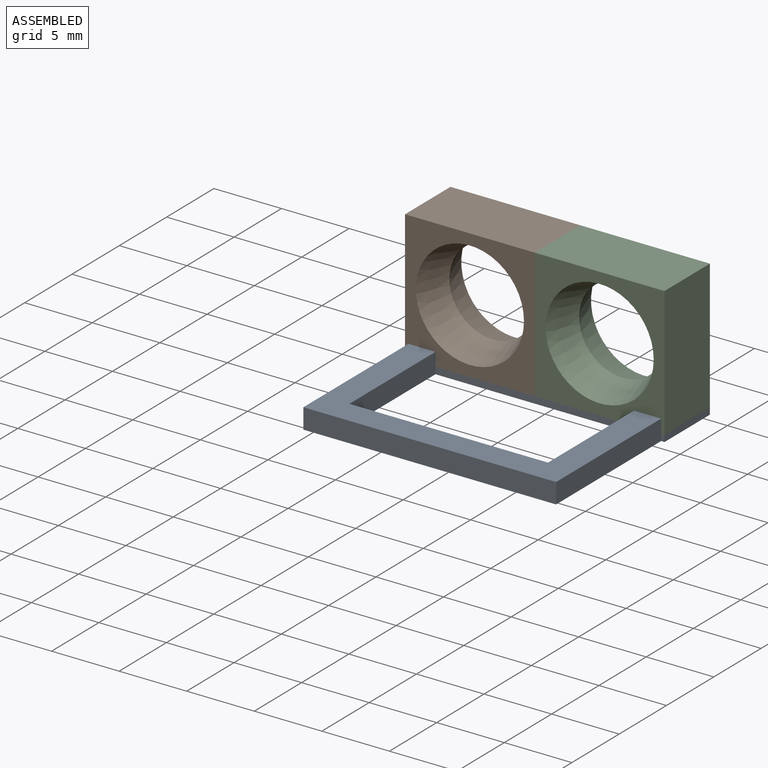
[diagram: assembled view]
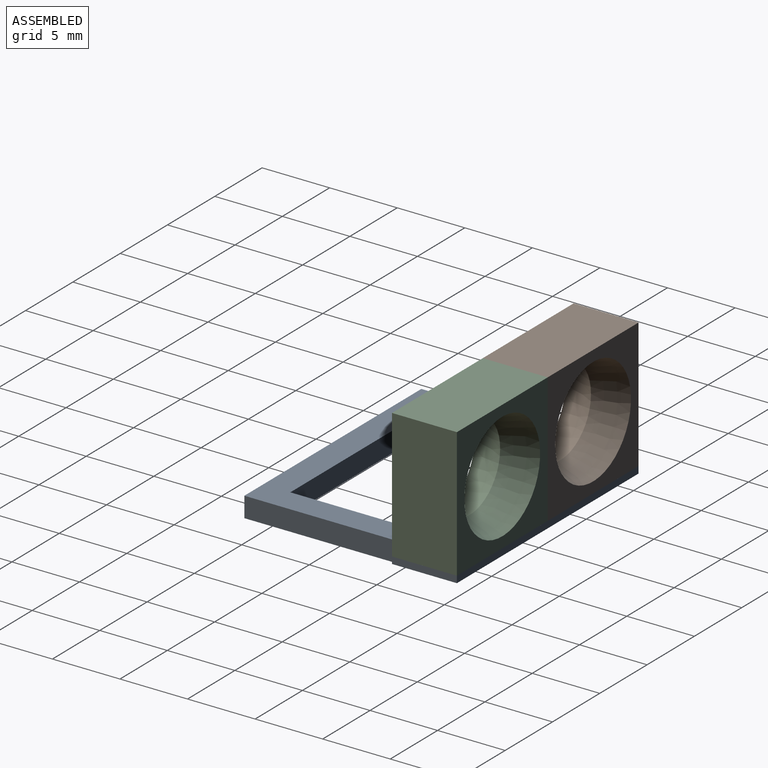
[diagram: assembled view, second angle]
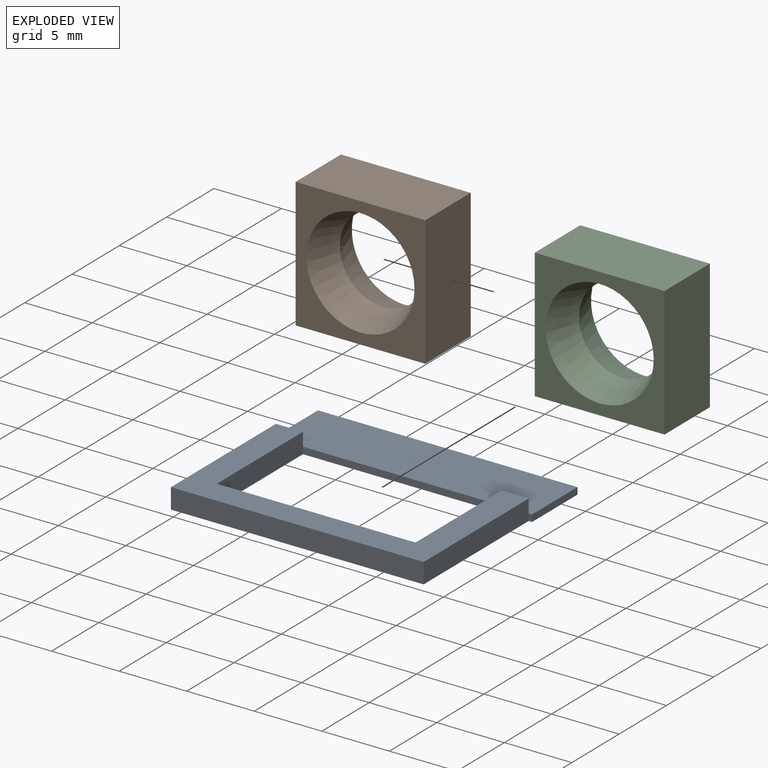
[diagram: exploded view]
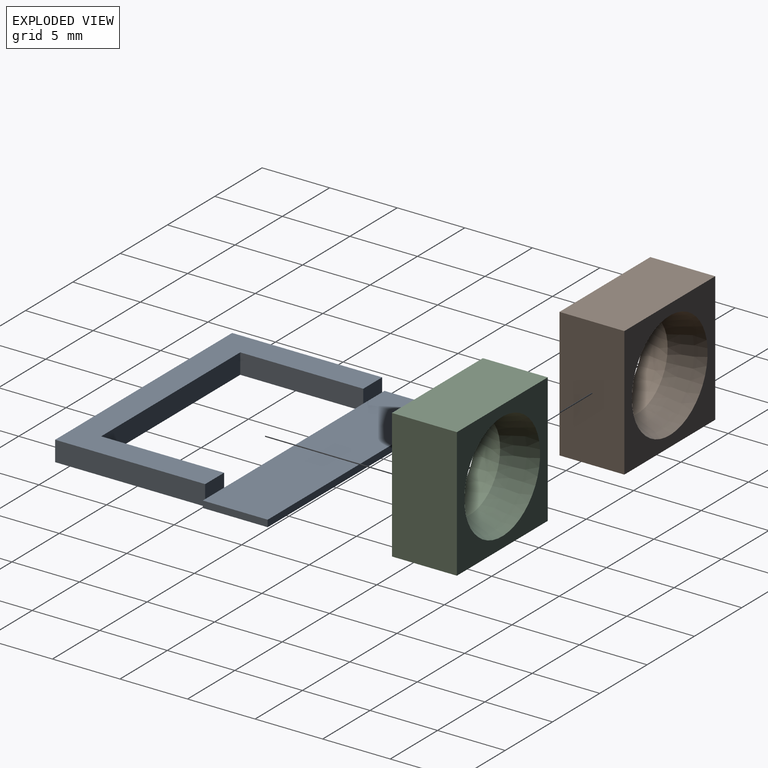
[diagram: exploded view, second angle]
ASSEMBLY  parts=3 mates=2
PART A: 17 faces, bbox 19.2x15.9x1.5 mm
  f0: plane 2x1mm, normal (0,1,0), area 2mm2, adj f1,f7,f8,f16
  f1: plane 11.1x1.5mm, normal (-1,0,0), area 16.6mm2, adj f0,f2,f8,f9,f14
  f2: plane 18.7x1.5mm, normal (0,-1,0), area 28.1mm2, adj f1,f3,f8,f9
  f3: plane 11.1x1.5mm, normal (1,0,0), area 16.6mm2, adj f2,f4,f8,f9,f11
  f4: plane 2x1mm, normal (0,1,0), area 2mm2, adj f3,f5,f8,f16
  f5: plane 9.1x1.5mm, normal (-1,0,0), area 13.7mm2, adj f4,f6,f8,f9,f10
  f6: plane 14.7x1.5mm, normal (0,1,0), area 22mm2, adj f5,f7,f8,f9
  f7: plane 9.1x1.5mm, normal (1,0,0), area 13.7mm2, adj f0,f6,f8,f9,f10
  f8: plane 18.7x11.1mm, normal (0,0,1), area 73.8mm2, adj f0,f1,f2,f3,f4,f5,f6,f7
  f9: plane 19.2x15.9mm, normal (0,0,-1), area 166mm2, adj f1,f2,f3,f5,f6,f7,f10,f11
  f10: plane 14.7x0.5mm, normal (0,-1,0), area 7.3mm2, adj f5,f7,f9,f16
  f11: plane 0.5x0.25mm, normal (0,-1,0), area 0.1mm2, adj f3,f9,f15,f16
  f12: plane 19.2x0.5mm, normal (0,1,0), area 9.6mm2, adj f9,f13,f15,f16
  f13: plane 4.8x0.5mm, normal (-1,0,0), area 2.4mm2, adj f9,f12,f14,f16
  f14: plane 0.5x0.25mm, normal (0,-1,0), area 0.1mm2, adj f1,f9,f13,f16
  f15: plane 4.8x0.5mm, normal (1,0,0), area 2.4mm2, adj f9,f11,f12,f16
  f16: plane 19.2x4.8mm, normal (0,0,1), area 92.2mm2, adj f0,f4,f10,f11,f12,f13,f14,f15
PART B: 8 faces, bbox 9.6x9.6x4.8 mm
  f0: plane 9.6x9.6mm, normal (0,0,1), area 41.9mm2, adj f2,f4,f5,f6,f7
  f1: plane 9.6x9.6mm, normal (0,0,-1), area 41.9mm2, adj f3,f4,f5,f6,f7
  f2: cone r=3.2mm half-angle=18.4deg, axis (0,0,1), area 57.2mm2, adj f0,f3
  f3: cone r=4mm half-angle=18.4deg, axis (0,0,-1), area 57.2mm2, adj f1,f2
  f4: plane 9.6x4.8mm, normal (0,1,0), area 46.1mm2, adj f0,f1,f5,f6
  f5: plane 9.6x4.8mm, normal (1,0,0), area 46.1mm2, adj f0,f1,f4,f7
  f6: plane 9.6x4.8mm, normal (-1,0,0), area 46.1mm2, adj f0,f1,f4,f7
  f7: plane 9.6x4.8mm, normal (0,-1,0), area 46.1mm2, adj f0,f1,f5,f6
PART C: same geometry as B
PLACE A t=(-3.55,-2.69,0.39)mm
PLACE B rot(axis=(1,0,0),90deg) t=(-8.35,6.66,-10.31)mm
PLACE C rot(axis=(1,0,0),90deg) t=(1.25,6.66,-10.31)mm
MATE fastened B.f5 <-> C.f6  axis (1,0,0) through (-3.55,4.26,5.69)mm
MATE fastened C.f7 <-> A.f16  axis (0,0,-1) through (6.05,6.66,0.89)mm
